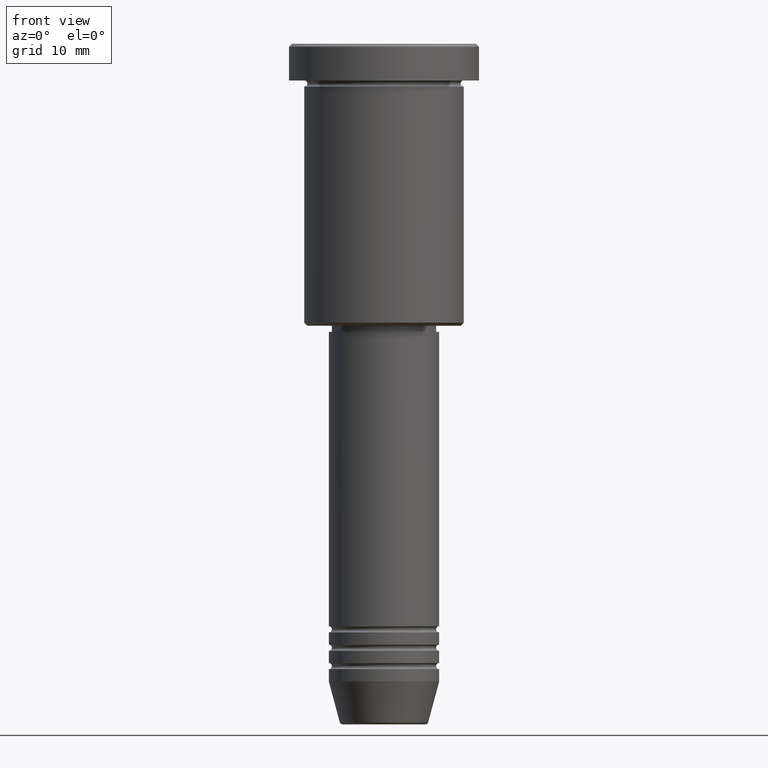
[diagram: clean part render]
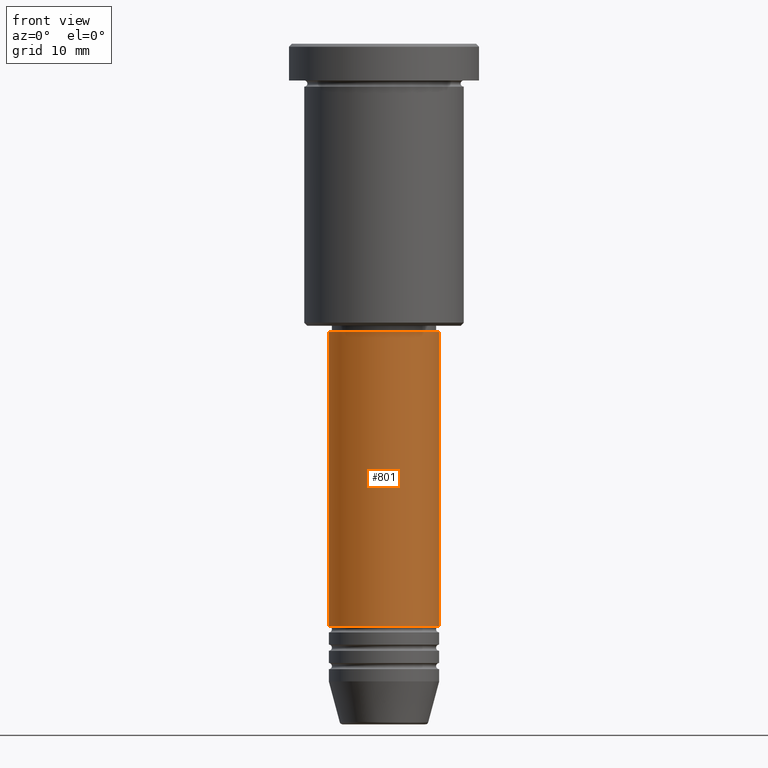
[diagram: same view with one face highlighted and labeled with its STEP entity id]
A machine part, front view. The second image highlights one B-rep face of the part: STEP entity #801.
In plain terms, the highlighted cylindrical surface (partial cylindrical patch) has radius 9 mm, axis along (-0, -0, 1).
Its self-contained STEP definition (entity closure, byte-faithful):
#62 = AXIS2_PLACEMENT_3D ( 'NONE', #1127, #430, #680 ) ;
#79 = CARTESIAN_POINT ( 'NONE',  ( 9.000000000000000000, 0.000000000000000000, -47.00000000000000711 ) ) ;
#84 = CYLINDRICAL_SURFACE ( 'NONE', #631, 9.000000000000000000 ) ;
#137 = EDGE_CURVE ( 'NONE', #1087, #372, #1107, .T. ) ;
#148 = VERTEX_POINT ( 'NONE', #664 ) ;
#182 = DIRECTION ( 'NONE',  ( -0.000000000000000000, -0.000000000000000000, 1.000000000000000000 ) ) ;
#238 = VECTOR ( 'NONE', #869, 1000.000000000000000 ) ;
#290 = CARTESIAN_POINT ( 'NONE',  ( 9.000000000000000000, 0.000000000000000000, 0.000000000000000000 ) ) ;
#345 = ORIENTED_EDGE ( 'NONE', *, *, #1085, .F. ) ;
#352 = DIRECTION ( 'NONE',  ( 1.000000000000000000, 0.000000000000000000, 0.000000000000000000 ) ) ;
#369 = DIRECTION ( 'NONE',  ( 1.000000000000000000, 0.000000000000000000, 0.000000000000000000 ) ) ;
#372 = VERTEX_POINT ( 'NONE', #79 ) ;
#375 = FACE_OUTER_BOUND ( 'NONE', #429, .T. ) ;
#429 = EDGE_LOOP ( 'NONE', ( #345, #873, #1031, #578 ) ) ;
#430 = DIRECTION ( 'NONE',  ( -0.000000000000000000, -0.000000000000000000, 1.000000000000000000 ) ) ;
#441 = CARTESIAN_POINT ( 'NONE',  ( 0.000000000000000000, 0.000000000000000000, 0.000000000000000000 ) ) ;
#482 = DIRECTION ( 'NONE',  ( -0.000000000000000000, -0.000000000000000000, 1.000000000000000000 ) ) ;
#578 = ORIENTED_EDGE ( 'NONE', *, *, #825, .F. ) ;
#609 = LINE ( 'NONE', #888, #238 ) ;
#626 = DIRECTION ( 'NONE',  ( -0.000000000000000000, -0.000000000000000000, 1.000000000000000000 ) ) ;
#631 = AXIS2_PLACEMENT_3D ( 'NONE', #441, #182, #369 ) ;
#664 = CARTESIAN_POINT ( 'NONE',  ( -9.000000000000000000, 1.102182119232617714E-15, -94.99999999999997158 ) ) ;
#666 = VECTOR ( 'NONE', #482, 1000.000000000000000 ) ;
#680 = DIRECTION ( 'NONE',  ( 1.000000000000000000, 0.000000000000000000, 0.000000000000000000 ) ) ;
#745 = AXIS2_PLACEMENT_3D ( 'NONE', #977, #626, #352 ) ;
#801 = ADVANCED_FACE ( 'NONE', ( #375 ), #84, .T. ) ;
#825 = EDGE_CURVE ( 'NONE', #921, #372, #896, .T. ) ;
#869 = DIRECTION ( 'NONE',  ( -0.000000000000000000, -0.000000000000000000, 1.000000000000000000 ) ) ;
#873 = ORIENTED_EDGE ( 'NONE', *, *, #1119, .T. ) ;
#888 = CARTESIAN_POINT ( 'NONE',  ( -9.000000000000000000, 1.102182119232617714E-15, 0.000000000000000000 ) ) ;
#896 = CIRCLE ( 'NONE', #745, 9.000000000000000000 ) ;
#921 = VERTEX_POINT ( 'NONE', #1084 ) ;
#955 = CARTESIAN_POINT ( 'NONE',  ( 9.000000000000000000, 0.000000000000000000, -94.99999999999997158 ) ) ;
#977 = CARTESIAN_POINT ( 'NONE',  ( 0.000000000000000000, 0.000000000000000000, -47.00000000000000711 ) ) ;
#1031 = ORIENTED_EDGE ( 'NONE', *, *, #137, .T. ) ;
#1084 = CARTESIAN_POINT ( 'NONE',  ( -9.000000000000000000, 1.102182119232617714E-15, -47.00000000000000711 ) ) ;
#1085 = EDGE_CURVE ( 'NONE', #148, #921, #609, .T. ) ;
#1087 = VERTEX_POINT ( 'NONE', #955 ) ;
#1107 = LINE ( 'NONE', #290, #666 ) ;
#1119 = EDGE_CURVE ( 'NONE', #148, #1087, #1150, .T. ) ;
#1127 = CARTESIAN_POINT ( 'NONE',  ( 0.000000000000000000, 0.000000000000000000, -94.99999999999997158 ) ) ;
#1150 = CIRCLE ( 'NONE', #62, 9.000000000000000000 ) ;